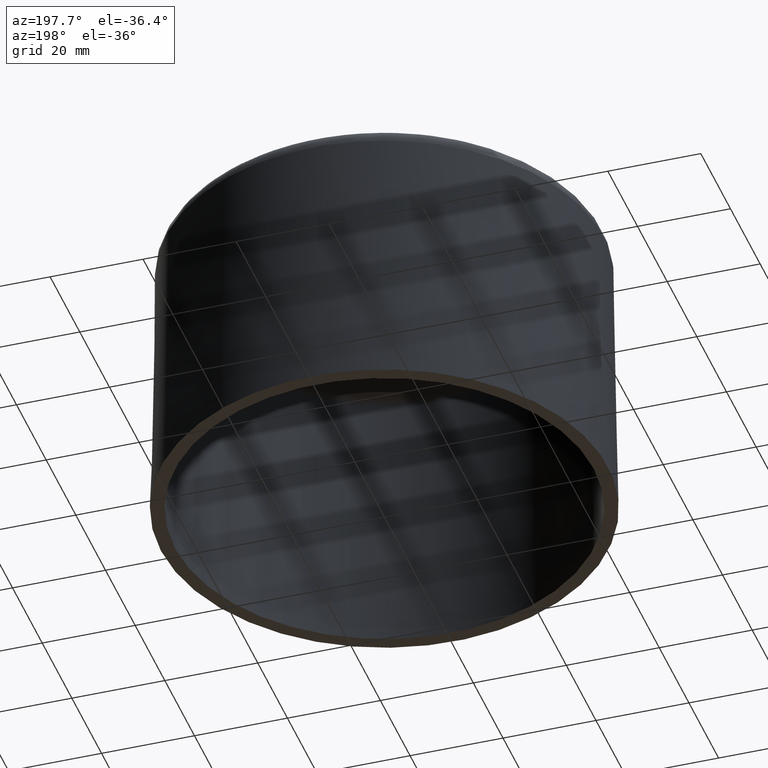
[diagram: clean part render]
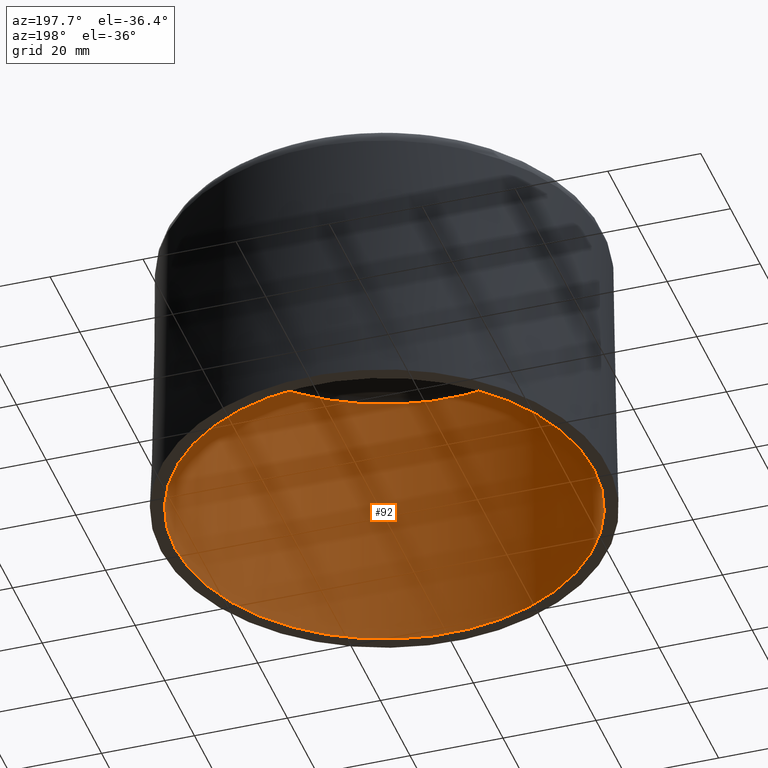
[diagram: same view with one face highlighted and labeled with its STEP entity id]
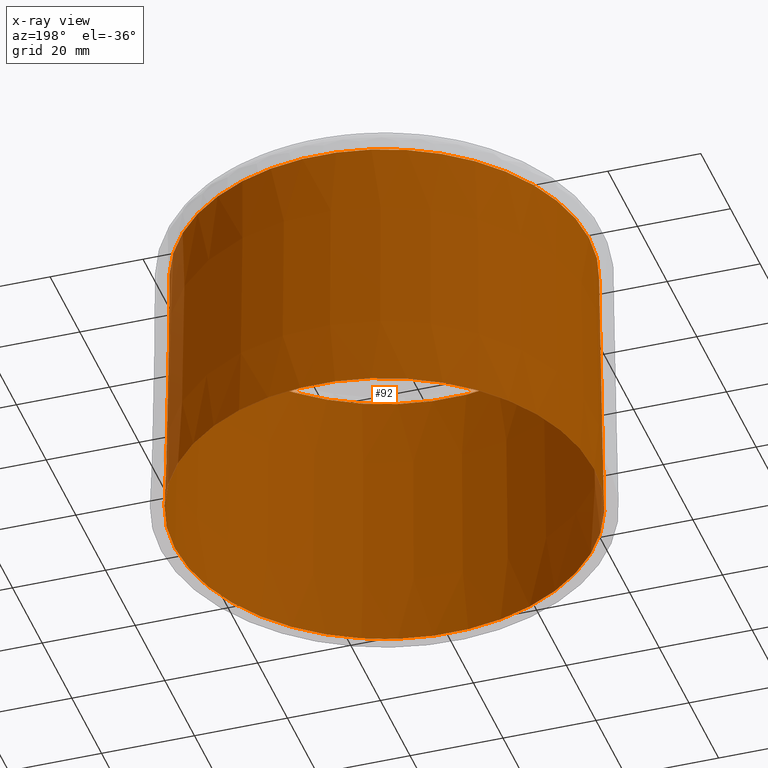
[diagram: x-ray of the same camera — body ghosted, the highlighted face saturated]
A machine part, auxiliary view. The second image highlights one B-rep face of the part: STEP entity #92.
The next image is the same camera in x-ray: the body ghosted, the highlighted face saturated — about 0% of this face is hidden behind the body in this view.
In plain terms, the highlighted conical surface has half-angle 1 deg.
Its self-contained STEP definition (entity closure, byte-faithful):
#92 = ADVANCED_FACE( '', ( #191, #192 ), #193, .F. );
#191 = FACE_OUTER_BOUND( '', #349, .T. );
#192 = FACE_BOUND( '', #350, .T. );
#193 = CONICAL_SURFACE( '', #351, 44.0434984841942, 0.0174532925199428 );
#349 = EDGE_LOOP( '', ( #687 ) );
#350 = EDGE_LOOP( '', ( #688 ) );
#351 = AXIS2_PLACEMENT_3D( '', #689, #690, #691 );
#687 = ORIENTED_EDGE( '', *, *, #1097, .F. );
#688 = ORIENTED_EDGE( '', *, *, #1126, .T. );
#689 = CARTESIAN_POINT( '', ( -3.61365736016664E-015, 0.000000000000000, 59.0174524064373 ) );
#690 = DIRECTION( '', ( 6.12303176911189E-017, 0.000000000000000, -1.00000000000000 ) );
#691 = DIRECTION( '', ( -1.00000000000000, 0.000000000000000, -6.12303176911189E-017 ) );
#1097 = EDGE_CURVE( '', #1282, #1282, #1283, .T. );
#1126 = EDGE_CURVE( '', #1331, #1331, #1332, .T. );
#1282 = VERTEX_POINT( '', #1646 );
#1283 = CIRCLE( '', #1647, 45.0736519478465 );
#1331 = VERTEX_POINT( '', #1851 );
#1332 = CIRCLE( '', #1852, 44.0434984841942 );
#1646 = CARTESIAN_POINT( '', ( 45.0736519478465, 0.000000000000000, -1.11179137795489E-014 ) );
#1647 = AXIS2_PLACEMENT_3D( '', #2096, #2097, #2098 );
#1851 = CARTESIAN_POINT( '', ( 44.0434984841942, 0.000000000000000, 59.0174524064373 ) );
#1852 = AXIS2_PLACEMENT_3D( '', #2112, #2113, #2114 );
#2096 = CARTESIAN_POINT( '', ( 8.49741356322415E-031, 0.000000000000000, -1.38777878078145E-014 ) );
#2097 = DIRECTION( '', ( -6.12303176911189E-017, 0.000000000000000, 1.00000000000000 ) );
#2098 = DIRECTION( '', ( 1.00000000000000, 0.000000000000000, 6.12303176911189E-017 ) );
#2112 = CARTESIAN_POINT( '', ( -3.61365736016664E-015, 0.000000000000000, 59.0174524064373 ) );
#2113 = DIRECTION( '', ( -6.12303176911189E-017, 0.000000000000000, 1.00000000000000 ) );
#2114 = DIRECTION( '', ( 1.00000000000000, 0.000000000000000, 6.12303176911189E-017 ) );